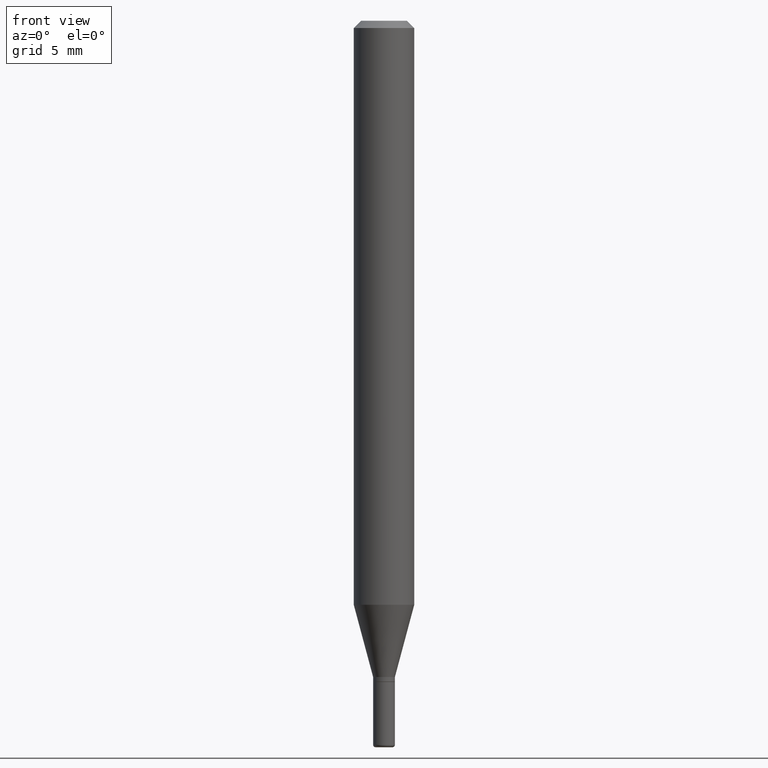
[diagram: clean part render]
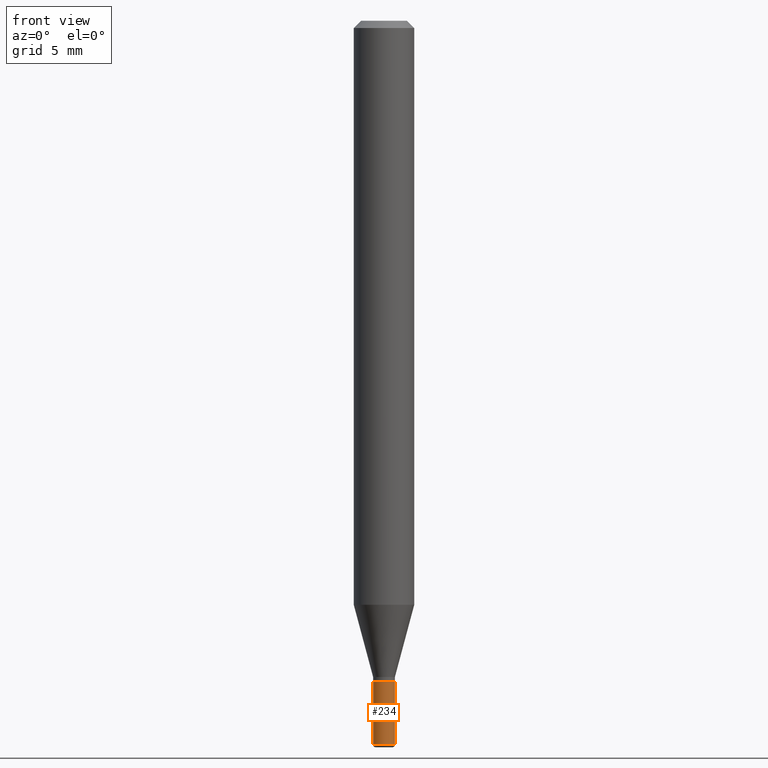
[diagram: same view with one face highlighted and labeled with its STEP entity id]
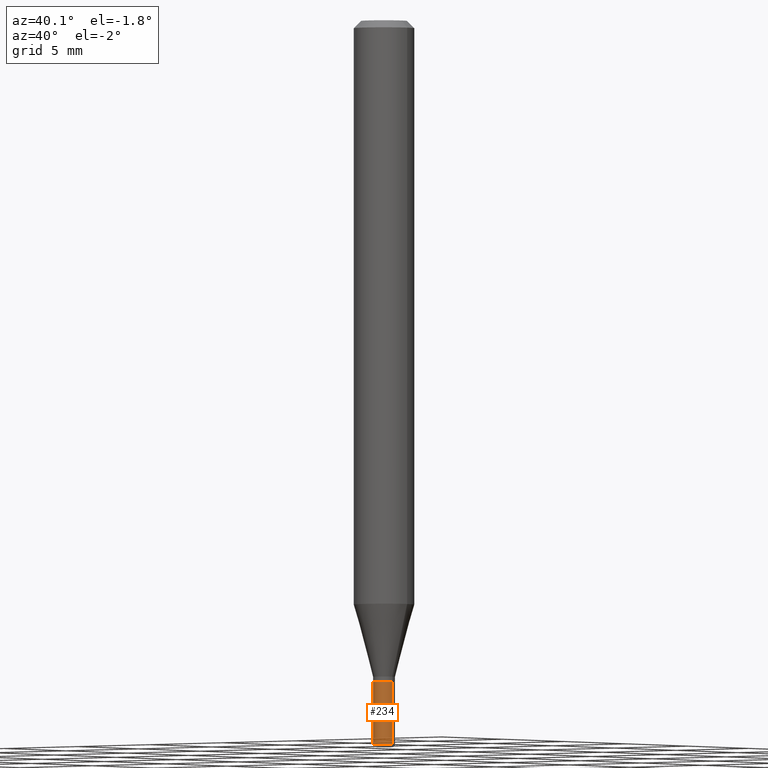
[diagram: same view with one face highlighted and labeled with its STEP entity id]
A machine part, front view. The second image highlights one B-rep face of the part: STEP entity #234.
A second angle (auxiliary view) of the same face is appended — the face is thin or edge-on in the first view.
In plain terms, the highlighted cylindrical surface (edge-blend (fillet) strip) has radius 0.5715 mm, axis along (-0, 0, 1).
Its self-contained STEP definition (entity closure, byte-faithful):
#1 = CARTESIAN_POINT ( 'NONE',  ( 0.02250000000000008937, -1.571166602479416074E-16, 1.097139774554090038E-30 ) ) ;
#6 = CARTESIAN_POINT ( 'NONE',  ( -0.02250000000000008937, 1.598721155460231769E-16, -1.106760395307358334E-30 ) ) ;
#35 = DIRECTION ( 'NONE',  ( -2.445468806185136597E-29, 3.491481338843145583E-15, 1.000000000000000000 ) ) ;
#40 = EDGE_CURVE ( 'NONE', #313, #43, #401, .T. ) ;
#42 = CARTESIAN_POINT ( 'NONE',  ( -0.02249999999999999917, -4.832946198999675921E-15, -1.364999999999999991 ) ) ;
#43 = VERTEX_POINT ( 'NONE', #42 ) ;
#64 = ORIENTED_EDGE ( 'NONE', *, *, #193, .T. ) ;
#76 = FACE_OUTER_BOUND ( 'NONE', #302, .T. ) ;
#78 = LINE ( 'NONE', #1, #305 ) ;
#82 = EDGE_CURVE ( 'NONE', #313, #172, #392, .T. ) ;
#114 = ORIENTED_EDGE ( 'NONE', *, *, #82, .T. ) ;
#117 = DIRECTION ( 'NONE',  ( -2.445468806185136877E-29, 3.491481338843145188E-15, 1.000000000000000000 ) ) ;
#163 = AXIS2_PLACEMENT_3D ( 'NONE', #196, #395, #245 ) ;
#172 = VERTEX_POINT ( 'NONE', #515 ) ;
#176 = EDGE_CURVE ( 'NONE', #43, #264, #178, .T. ) ;
#178 = CIRCLE ( 'NONE', #256, 0.02249999999999999917 ) ;
#193 = EDGE_CURVE ( 'NONE', #172, #264, #78, .T. ) ;
#196 = CARTESIAN_POINT ( 'NONE',  ( 0.000000000000000000, 0.000000000000000000, 0.000000000000000000 ) ) ;
#201 = DIRECTION ( 'NONE',  ( 1.000000000000000000, -6.982962677686269077E-15, 0.000000000000000000 ) ) ;
#204 = CARTESIAN_POINT ( 'NONE',  ( 0.02249999999999999917, -4.922988687768834913E-15, -1.364999999999999991 ) ) ;
#221 = DIRECTION ( 'NONE',  ( -2.445468806185136597E-29, 3.491481338843145583E-15, 1.000000000000000000 ) ) ;
#234 = ADVANCED_FACE ( 'NONE', ( #76 ), #514, .T. ) ;
#245 = DIRECTION ( 'NONE',  ( 1.000000000000000000, -6.982962677686265922E-15, 4.876176775795936353E-29 ) ) ;
#256 = AXIS2_PLACEMENT_3D ( 'NONE', #479, #35, #201 ) ;
#264 = VERTEX_POINT ( 'NONE', #204 ) ;
#292 = DIRECTION ( 'NONE',  ( -2.445468806185136877E-29, 3.491481338843145188E-15, 1.000000000000000000 ) ) ;
#300 = CARTESIAN_POINT ( 'NONE',  ( 3.655975865246779683E-29, -5.219764601570503930E-15, -1.495000000000000329 ) ) ;
#302 = EDGE_LOOP ( 'NONE', ( #346, #114, #64, #403 ) ) ;
#305 = VECTOR ( 'NONE', #117, 39.37007874015748143 ) ;
#313 = VERTEX_POINT ( 'NONE', #404 ) ;
#346 = ORIENTED_EDGE ( 'NONE', *, *, #40, .F. ) ;
#392 = CIRCLE ( 'NONE', #442, 0.02250000000000017958 ) ;
#395 = DIRECTION ( 'NONE',  ( -2.445468806185136597E-29, 3.491481338843145583E-15, 1.000000000000000000 ) ) ;
#401 = LINE ( 'NONE', #6, #450 ) ;
#403 = ORIENTED_EDGE ( 'NONE', *, *, #176, .F. ) ;
#404 = CARTESIAN_POINT ( 'NONE',  ( -0.02250000000000017958, -4.832946198999673555E-15, -1.495000000000000329 ) ) ;
#411 = DIRECTION ( 'NONE',  ( 1.000000000000000000, -6.982962677686255667E-15, 0.000000000000000000 ) ) ;
#442 = AXIS2_PLACEMENT_3D ( 'NONE', #300, #221, #411 ) ;
#450 = VECTOR ( 'NONE', #292, 39.37007874015748143 ) ;
#479 = CARTESIAN_POINT ( 'NONE',  ( 3.338064920442711836E-29, -4.765872027520893280E-15, -1.364999999999999991 ) ) ;
#514 = CYLINDRICAL_SURFACE ( 'NONE', #163, 0.02250000000000008937 ) ;
#515 = CARTESIAN_POINT ( 'NONE',  ( 0.02250000000000017958, -5.376881261818446351E-15, -1.495000000000000329 ) ) ;